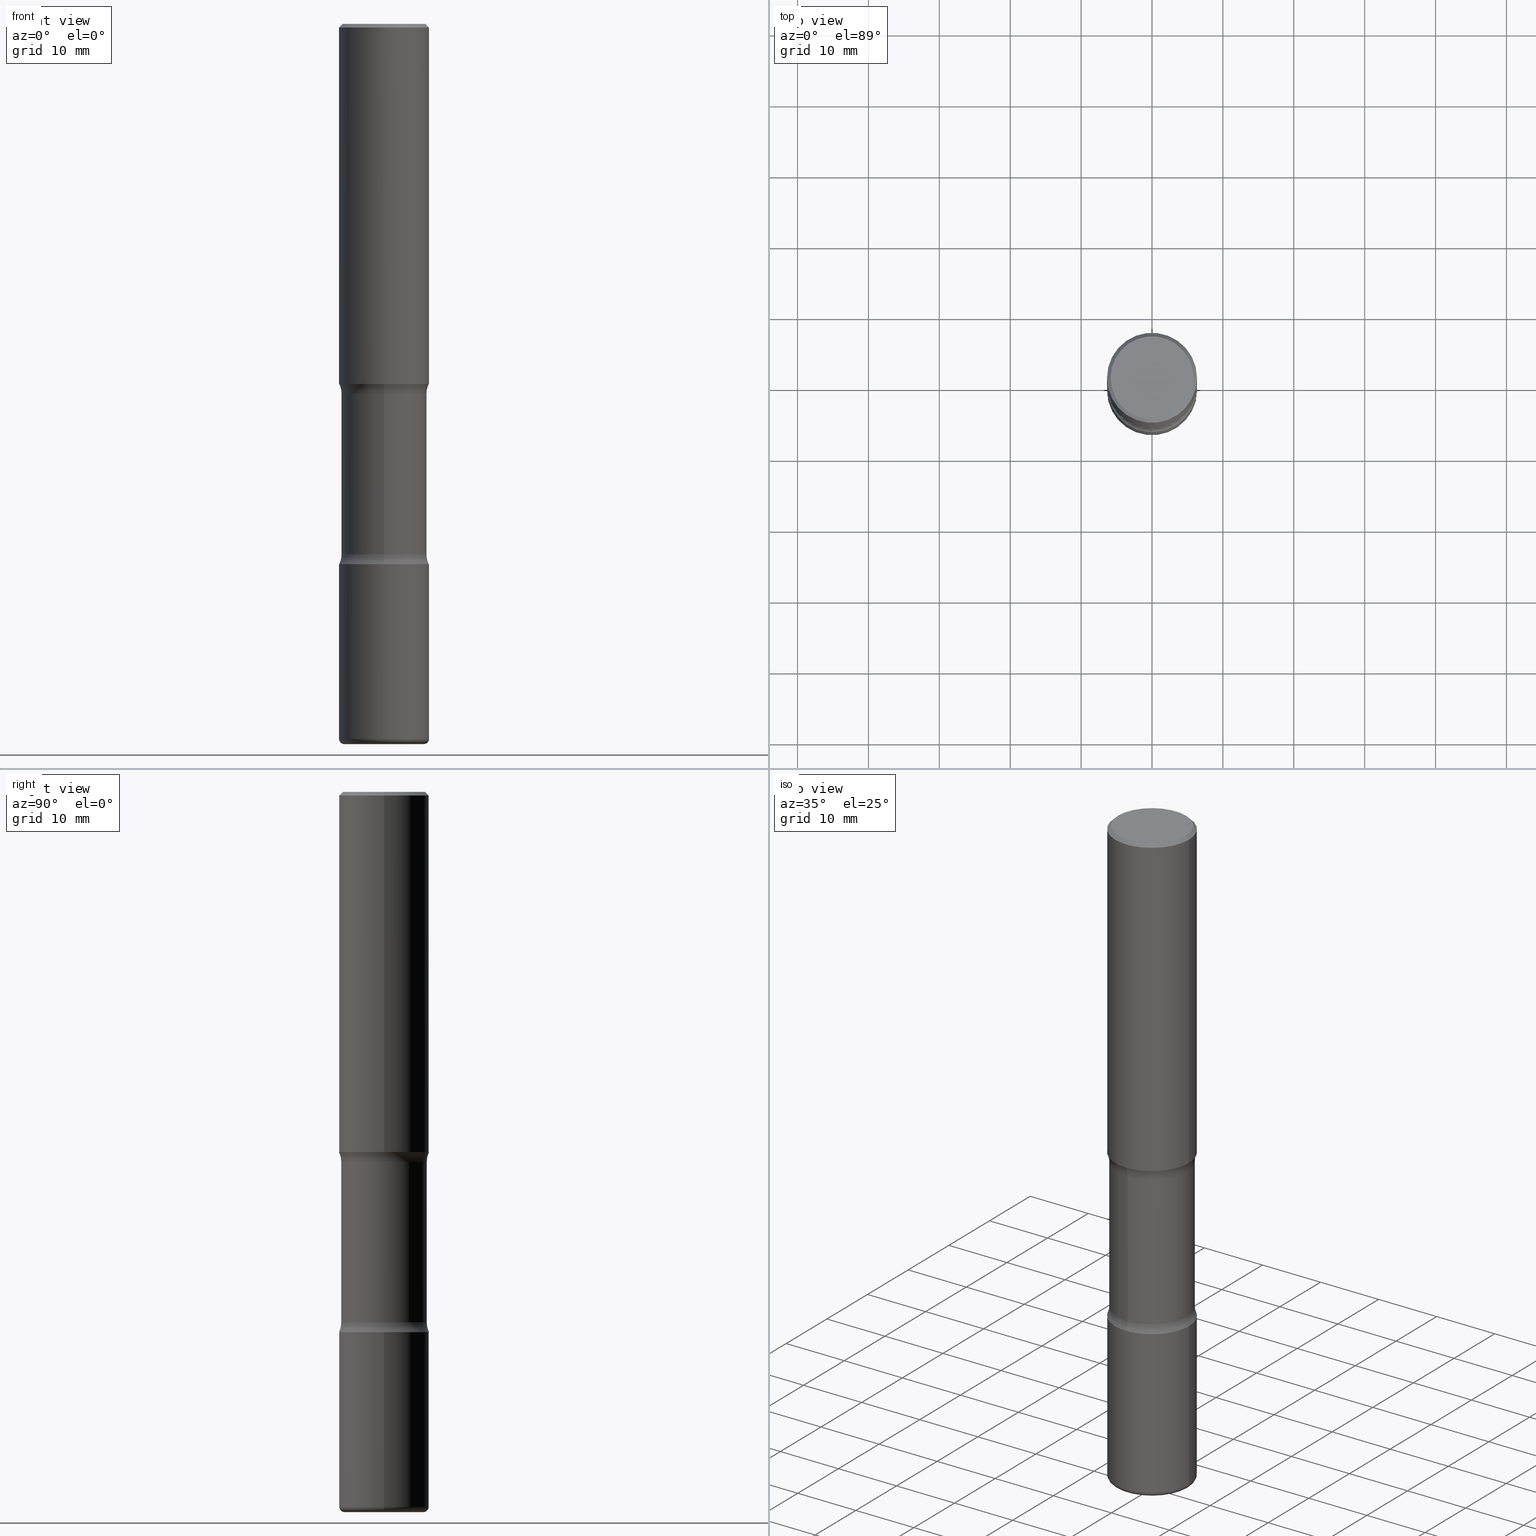
[diagram: canonical four-view strip — front | top / right | iso, engineering-drawing reading convention]
A machine part, canonical four-view strip (front | top / right | iso — engineering-drawing reading convention). The complete STEP part file that produces these views, byte-faithful:
ISO-10303-21;
HEADER;
FILE_DESCRIPTION (( 'STEP AP203' ),
    '1' );
FILE_NAME ('37879.STEP',
    '2024-03-02T01:00:51',
    ( '' ),
    ( '' ),
    'SwSTEP 2.0',
    'SolidWorks 2023',
    '' );
FILE_SCHEMA (( 'CONFIG_CONTROL_DESIGN' ));
ENDSEC;

DATA;
#1 = AXIS2_PLACEMENT_3D ( 'NONE', #535, #62, #238 ) ;
#2 = MANIFOLD_SOLID_BREP ( 'Body-Move/Copy2[1]', #109 ) ;
#3 = PRODUCT_RELATED_PRODUCT_CATEGORY ( 'detail', '', ( #386 ) ) ;
#4 = PRODUCT_DEFINITION_FORMATION_WITH_SPECIFIED_SOURCE ( 'ANY', '', #386, .NOT_KNOWN. ) ;
#5 = ORIENTED_EDGE ( 'NONE', *, *, #202, .T. ) ;
#6 = DIRECTION ( 'NONE',  ( 6.982962677686265922E-15, 1.000000000000000000, -3.369885892833230592E-15 ) ) ;
#7 = DIRECTION ( 'NONE',  ( 2.530378452311521502E-29, -3.369885892833230986E-15, -1.000000000000000000 ) ) ;
#8 = DIRECTION ( 'NONE',  ( 2.530378452311521502E-29, -3.369885892833230986E-15, -1.000000000000000000 ) ) ;
#9 = EDGE_LOOP ( 'NONE', ( #264, #334 ) ) ;
#10 = MANIFOLD_SOLID_BREP ( 'Body-Move/Copy2[2]', #168 ) ;
#11 = DIRECTION ( 'NONE',  ( 1.000000000000000000, -6.982962677686265922E-15, 0.000000000000000000 ) ) ;
#12 = SECURITY_CLASSIFICATION ( '', '', #315 ) ;
#13 = VERTEX_POINT ( 'NONE', #18 ) ;
#14 = DIRECTION ( 'NONE',  ( -2.445468806185136597E-29, 3.491481338843145583E-15, 1.000000000000000000 ) ) ;
#15 = EDGE_CURVE ( 'NONE', #90, #30, #239, .T. ) ;
#16 = EDGE_CURVE ( 'NONE', #522, #553, #38, .T. ) ;
#17 = FACE_OUTER_BOUND ( 'NONE', #393, .T. ) ;
#18 = CARTESIAN_POINT ( 'NONE',  ( -1.715124499442836348E-15, -0.2500000000000074385, -1.999999999999999112 ) ) ;
#19 = CARTESIAN_POINT ( 'NONE',  ( 9.866784870866931853E-29, -1.384432990936266734E-14, -4.000000000000000000 ) ) ;
#20 = PLANE ( 'NONE',  #560 ) ;
#21 = AXIS2_PLACEMENT_3D ( 'NONE', #118, #333, #206 ) ;
#22 = AXIS2_PLACEMENT_3D ( 'NONE', #371, #480, #6 ) ;
#23 = CYLINDRICAL_SURFACE ( 'NONE', #364, 0.2375000000000000999 ) ;
#24 = ADVANCED_FACE ( 'NONE', ( #482 ), #242, .F. ) ;
#25 = EDGE_CURVE ( 'NONE', #360, #13, #241, .T. ) ;
#26 = FACE_OUTER_BOUND ( 'NONE', #474, .T. ) ;
#27 = FACE_OUTER_BOUND ( 'NONE', #344, .T. ) ;
#28 = DIRECTION ( 'NONE',  ( 1.000000000000000000, -6.982962677686267499E-15, 0.000000000000000000 ) ) ;
#29 = CARTESIAN_POINT ( 'NONE',  ( 1.658453635950538436E-15, 0.2374999999999928557, -2.054486236794259568 ) ) ;
#30 = VERTEX_POINT ( 'NONE', #278 ) ;
#31 = CARTESIAN_POINT ( 'NONE',  ( 0.2499999999999999167, -1.784954126219745400E-15, -0.02000000000000006981 ) ) ;
#32 = CARTESIAN_POINT ( 'NONE',  ( 9.781875224740546387E-29, -1.396592535537258233E-14, -4.000000000000000000 ) ) ;
#33 = TOROIDAL_SURFACE ( 'NONE', #355, 0.3625000000000000999, 0.1250000000000000000 ) ;
#34 = DIMENSIONAL_EXPONENTS ( 1.000000000000000000, 0.000000000000000000, 0.000000000000000000, 0.000000000000000000, 0.000000000000000000, 0.000000000000000000, 0.000000000000000000 ) ;
#35 = DIRECTION ( 'NONE',  ( 2.530378452311521502E-29, -3.369885892833230986E-15, -1.000000000000000000 ) ) ;
#36 = CIRCLE ( 'NONE', #133, 0.2500000000000003886 ) ;
#37 = ORIENTED_EDGE ( 'NONE', *, *, #184, .F. ) ;
#38 = CIRCLE ( 'NONE', #542, 0.2375000000000000722 ) ;
#39 = CARTESIAN_POINT ( 'NONE',  ( 7.198535619023675570E-29, -1.029083161580289368E-14, -2.945513763205741320 ) ) ;
#40 = CC_DESIGN_SECURITY_CLASSIFICATION ( #12, ( #4 ) ) ;
#41 = CC_DESIGN_DATE_AND_TIME_ASSIGNMENT ( #94, #511, ( #12 ) ) ;
#42 = CARTESIAN_POINT ( 'NONE',  ( 4.943898765775623630E-29, -7.288170524422749615E-15, -2.054486236794258680 ) ) ;
#43 = EDGE_LOOP ( 'NONE', ( #484, #134, #5, #232 ) ) ;
#44 = EDGE_LOOP ( 'NONE', ( #104, #317, #88, #79 ) ) ;
#45 = PRODUCT_DEFINITION_SHAPE ( 'NONE', 'NONE',  #83 ) ;
#46 = COORDINATED_UNIVERSAL_TIME_OFFSET ( 5, 0, .BEHIND. ) ;
#47 = ORIENTED_EDGE ( 'NONE', *, *, #326, .F. ) ;
#48 = AXIS2_PLACEMENT_3D ( 'NONE', #53, #552, #316 ) ;
#49 = COORDINATED_UNIVERSAL_TIME_OFFSET ( 5, 0, .BEHIND. ) ;
#50 = CARTESIAN_POINT ( 'NONE',  ( 7.336406418555409790E-29, -1.047444401652943635E-14, -3.000000000000000444 ) ) ;
#51 = APPROVAL_DATE_TIME ( #145, #170 ) ;
#52 = CC_DESIGN_PERSON_AND_ORGANIZATION_ASSIGNMENT ( #308, #518, ( #12 ) ) ;
#53 = CARTESIAN_POINT ( 'NONE',  ( 0.000000000000000000, 0.000000000000000000, 0.000000000000000000 ) ) ;
#54 = EDGE_CURVE ( 'NONE', #557, #360, #311, .T. ) ;
#55 = AXIS2_PLACEMENT_3D ( 'NONE', #213, #460, #539 ) ;
#56 = VECTOR ( 'NONE', #376, 39.37007874015748143 ) ;
#57 = EDGE_LOOP ( 'NONE', ( #221, #397, #395, #369 ) ) ;
#58 = CARTESIAN_POINT ( 'NONE',  ( 0.000000000000000000, 0.000000000000000000, 0.000000000000000000 ) ) ;
#59 = DIRECTION ( 'NONE',  ( -2.445468806185136877E-29, 3.491481338843145188E-15, 1.000000000000000000 ) ) ;
#60 = ORIENTED_EDGE ( 'NONE', *, *, #269, .F. ) ;
#61 = CARTESIAN_POINT ( 'NONE',  ( 2.531323970661321775E-15, 0.3624999999999928280, -2.054486236794260012 ) ) ;
#62 = DIRECTION ( 'NONE',  ( 2.438088387897960049E-29, -3.491481338843145188E-15, -1.000000000000000000 ) ) ;
#63 = AXIS2_PLACEMENT_3D ( 'NONE', #58, #192, #283 ) ;
#64 = DIRECTION ( 'NONE',  ( 2.530378452311521502E-29, -3.369885892833230986E-15, -1.000000000000000000 ) ) ;
#65 = VECTOR ( 'NONE', #287, 39.37007874015748143 ) ;
#66 = CARTESIAN_POINT ( 'NONE',  ( -0.2499999999999999167, 1.675911042644703182E-15, -0.02000000000000006981 ) ) ;
#67 = LOCAL_TIME ( 20, 0, 51.00000000000000000, #471 ) ;
#68 = FACE_OUTER_BOUND ( 'NONE', #466, .T. ) ;
#69 = CARTESIAN_POINT ( 'NONE',  ( -2.486930524192108484E-15, -0.3625000000000104250, -2.945513763205740432 ) ) ;
#70 = CARTESIAN_POINT ( 'NONE',  ( 7.203162026108633562E-29, -1.028420633753849345E-14, -2.945513763205741320 ) ) ;
#71 = EDGE_CURVE ( 'NONE', #437, #126, #513, .T. ) ;
#72 = FACE_OUTER_BOUND ( 'NONE', #218, .T. ) ;
#73 = DIRECTION ( 'NONE',  ( -2.445468806185136597E-29, 3.491481338843145583E-15, 1.000000000000000000 ) ) ;
#74 = DIRECTION ( 'NONE',  ( 1.000000000000000000, -6.982962677686267499E-15, 0.000000000000000000 ) ) ;
#75 = AXIS2_PLACEMENT_3D ( 'NONE', #274, #439, #220 ) ;
#76 = DIRECTION ( 'NONE',  ( 2.445468806185136597E-29, -3.491481338843145583E-15, -1.000000000000000000 ) ) ;
#77 = DIRECTION ( 'NONE',  ( 6.982962677686265922E-15, 1.000000000000000000, -4.370956789862816416E-15 ) ) ;
#78 = DIRECTION ( 'NONE',  ( 1.000000000000000000, -6.860497997771530774E-15, 4.842287994361612002E-29 ) ) ;
#79 = ORIENTED_EDGE ( 'NONE', *, *, #495, .F. ) ;
#80 = DESIGN_CONTEXT ( 'detailed design', #117, 'design' ) ;
#81 = CARTESIAN_POINT ( 'NONE',  ( -0.2200000000000003897, -1.229798689653506716E-14, -3.970000000000000639 ) ) ;
#82 = ORIENTED_EDGE ( 'NONE', *, *, #113, .T. ) ;
#83 = PRODUCT_DEFINITION ( 'UNKNOWN', '', #4, #80 ) ;
#84 = CYLINDRICAL_SURFACE ( 'NONE', #100, 0.2500000000000000555 ) ;
#85 = TOROIDAL_SURFACE ( 'NONE', #21, 0.3625000000000000999, 0.1250000000000000278 ) ;
#86 =( LENGTH_UNIT ( ) NAMED_UNIT ( * ) SI_UNIT ( $, .METRE. ) );
#87 = AXIS2_PLACEMENT_3D ( 'NONE', #493, #35, #297 ) ;
#88 = ORIENTED_EDGE ( 'NONE', *, *, #16, .T. ) ;
#89 = PERSON_AND_ORGANIZATION ( #91, #507 ) ;
#90 = VERTEX_POINT ( 'NONE', #197 ) ;
#91 = PERSON ( 'UNSPECIFIED', 'UNSPECIFIED', 'UNSPECIFIED', ('UNSPECIFIED'), ('UNSPECIFIED'), ('UNSPECIFIED') ) ;
#92 = APPROVAL_DATE_TIME ( #359, #504 ) ;
#93 = VERTEX_POINT ( 'NONE', #441 ) ;
#94 = DATE_AND_TIME ( #136, #293 ) ;
#95 = DIRECTION ( 'NONE',  ( 1.000000000000000000, -6.982962677686266711E-15, 4.876176775795935793E-29 ) ) ;
#96 = AXIS2_PLACEMENT_3D ( 'NONE', #324, #279, #11 ) ;
#97 = CALENDAR_DATE ( 2024, 1, 3 ) ;
#98 = SHAPE_DEFINITION_REPRESENTATION ( #45, #164 ) ;
#99 = ORIENTED_EDGE ( 'NONE', *, *, #448, .T. ) ;
#100 = AXIS2_PLACEMENT_3D ( 'NONE', #454, #418, #258 ) ;
#101 = AXIS2_PLACEMENT_3D ( 'NONE', #294, #216, #130 ) ;
#102 = ORIENTED_EDGE ( 'NONE', *, *, #281, .T. ) ;
#103 = CARTESIAN_POINT ( 'NONE',  ( 7.336406418555409790E-29, -1.047444401652943635E-14, -3.000000000000000444 ) ) ;
#104 = ORIENTED_EDGE ( 'NONE', *, *, #464, .F. ) ;
#105 = ORIENTED_EDGE ( 'NONE', *, *, #505, .T. ) ;
#106 = DIRECTION ( 'NONE',  ( 1.000000000000000000, -6.982962677686265922E-15, 0.000000000000000000 ) ) ;
#107 = CC_DESIGN_PERSON_AND_ORGANIZATION_ASSIGNMENT ( #556, #187, ( #386 ) ) ;
#108 = DIRECTION ( 'NONE',  ( 6.860497997771532351E-15, 1.000000000000000000, 0.000000000000000000 ) ) ;
#109 = CLOSED_SHELL ( 'NONE', ( #135, #538, #177, #440, #245, #391 ) ) ;
#110 = CIRCLE ( 'NONE', #304, 0.2500000000000003886 ) ;
#111 = DIRECTION ( 'NONE',  ( -6.982962677686266711E-15, -1.000000000000000000, 0.000000000000000000 ) ) ;
#112 = CARTESIAN_POINT ( 'NONE',  ( 0.2499999999999999167, -1.784954126219745400E-15, -0.02000000000000006981 ) ) ;
#113 = EDGE_CURVE ( 'NONE', #126, #437, #217, .T. ) ;
#114 = FACE_OUTER_BOUND ( 'NONE', #405, .T. ) ;
#115 = EDGE_CURVE ( 'NONE', #366, #129, #421, .T. ) ;
#116 = DIRECTION ( 'NONE',  ( 1.000000000000000000, -6.860497997771530774E-15, 4.842287994361612002E-29 ) ) ;
#117 = APPLICATION_CONTEXT ( 'configuration controlled 3d designs of mechanical parts and assemblies' ) ;
#118 = CARTESIAN_POINT ( 'NONE',  ( 7.203162026108633562E-29, -1.028420633753849345E-14, -2.945513763205741320 ) ) ;
#119 = DIRECTION ( 'NONE',  ( 1.000000000000000000, -6.982962677686269077E-15, 4.883557194083113462E-29 ) ) ;
#120 = CYLINDRICAL_SURFACE ( 'NONE', #475, 0.2500000000000003331 ) ;
#121 = CIRCLE ( 'NONE', #87, 0.2500000000000002776 ) ;
#122 = APPROVAL_PERSON_ORGANIZATION ( #354, #325, #427 ) ;
#123 = CARTESIAN_POINT ( 'NONE',  ( -0.2499999999999999167, 1.675911042644703182E-15, -0.02000000000000006981 ) ) ;
#124 = ORIENTED_EDGE ( 'NONE', *, *, #505, .F. ) ;
#125 = DIRECTION ( 'NONE',  ( -6.982962677686266711E-15, -1.000000000000000000, 3.491481338843145583E-15 ) ) ;
#126 = VERTEX_POINT ( 'NONE', #447 ) ;
#127 = ADVANCED_FACE ( 'NONE', ( #237 ), #270, .F. ) ;
#128 = DIRECTION ( 'NONE',  ( -1.000000000000000000, 7.105427357601001859E-15, 0.000000000000000000 ) ) ;
#129 = VERTEX_POINT ( 'NONE', #157 ) ;
#130 = DIRECTION ( 'NONE',  ( -6.982962677686265133E-15, -1.000000000000000000, 0.000000000000000000 ) ) ;
#131 = EDGE_LOOP ( 'NONE', ( #301, #190, #517, #102 ) ) ;
#132 = DIRECTION ( 'NONE',  ( 6.982962677686265133E-15, 1.000000000000000000, -3.450755360418014766E-15 ) ) ;
#133 = AXIS2_PLACEMENT_3D ( 'NONE', #461, #305, #252 ) ;
#134 = ORIENTED_EDGE ( 'NONE', *, *, #269, .T. ) ;
#135 = ADVANCED_FACE ( 'NONE', ( #68 ), #408, .T. ) ;
#136 = CALENDAR_DATE ( 2024, 1, 3 ) ;
#137 = ORIENTED_EDGE ( 'NONE', *, *, #176, .T. ) ;
#138 = PERSON_AND_ORGANIZATION ( #91, #507 ) ;
#139 = CARTESIAN_POINT ( 'NONE',  ( 0.000000000000000000, 0.000000000000000000, 0.000000000000000000 ) ) ;
#140 = CALENDAR_DATE ( 2024, 1, 3 ) ;
#141 = AXIS2_PLACEMENT_3D ( 'NONE', #486, #520, #318 ) ;
#142 = CIRCLE ( 'NONE', #215, 0.1250000000000000278 ) ;
#143 = CIRCLE ( 'NONE', #357, 0.2499999999999999167 ) ;
#144 = LOCAL_TIME ( 20, 0, 51.00000000000000000, #46 ) ;
#145 = DATE_AND_TIME ( #140, #250 ) ;
#146 = CC_DESIGN_PERSON_AND_ORGANIZATION_ASSIGNMENT ( #89, #181, ( #83 ) ) ;
#147 = EDGE_LOOP ( 'NONE', ( #420, #212, #275, #385 ) ) ;
#148 = DIRECTION ( 'NONE',  ( 6.982962677686265922E-15, 1.000000000000000000, -3.369885892833230986E-15 ) ) ;
#149 = APPLICATION_CONTEXT ( 'configuration controlled 3d designs of mechanical parts and assemblies' ) ;
#150 = FACE_OUTER_BOUND ( 'NONE', #548, .T. ) ;
#151 = VECTOR ( 'NONE', #59, 39.37007874015748143 ) ;
#152 = DIRECTION ( 'NONE',  ( 1.000000000000000000, -6.982962677686270655E-15, 0.000000000000000000 ) ) ;
#153 = ADVANCED_FACE ( 'NONE', ( #310 ), #33, .F. ) ;
#154 = DIRECTION ( 'NONE',  ( 1.000000000000000000, -6.982962677686267499E-15, 0.000000000000000000 ) ) ;
#155 = CARTESIAN_POINT ( 'NONE',  ( 0.000000000000000000, 0.000000000000000000, 0.000000000000000000 ) ) ;
#156 = DIRECTION ( 'NONE',  ( -2.445468806185136597E-29, 3.491481338843145583E-15, 1.000000000000000000 ) ) ;
#157 = CARTESIAN_POINT ( 'NONE',  ( 0.2500000000000002776, -1.222018468595100619E-14, -3.000000000000000444 ) ) ;
#158 = EDGE_CURVE ( 'NONE', #272, #182, #185, .T. ) ;
#159 = EDGE_CURVE ( 'NONE', #172, #366, #411, .T. ) ;
#160 = AXIS2_PLACEMENT_3D ( 'NONE', #424, #384, #119 ) ;
#161 = CARTESIAN_POINT ( 'NONE',  ( -0.2500000000000000555, 1.776356839400250859E-15, -1.229733772563726866E-29 ) ) ;
#162 = CARTESIAN_POINT ( 'NONE',  ( -1.715124499442811104E-15, -0.2500000000000107692, -2.999999999999999556 ) ) ;
#163 =( NAMED_UNIT ( * ) SI_UNIT ( $, .STERADIAN. ) SOLID_ANGLE_UNIT ( ) );
#164 = ADVANCED_BREP_SHAPE_REPRESENTATION ( '37879', ( #2, #10, #378, #48 ), #372 ) ;
#165 = LINE ( 'NONE', #335, #204 ) ;
#166 = CARTESIAN_POINT ( 'NONE',  ( -1.629368274470640415E-15, -0.2375000000000139222, -3.999999999999999556 ) ) ;
#167 = DIRECTION ( 'NONE',  ( 2.530378452311521502E-29, -3.369885892833230986E-15, -1.000000000000000000 ) ) ;
#168 = CLOSED_SHELL ( 'NONE', ( #210, #309, #479, #433, #24, #302 ) ) ;
#169 = CIRCLE ( 'NONE', #224, 0.2375000000000000722 ) ;
#170 = APPROVAL ( #350, 'UNSPECIFIED' ) ;
#171 = DIRECTION ( 'NONE',  ( -2.530378452311521502E-29, 3.369885892833230592E-15, 1.000000000000000000 ) ) ;
#172 = VERTEX_POINT ( 'NONE', #342 ) ;
#173 = DIRECTION ( 'NONE',  ( -2.445468806185136597E-29, 3.491481338843145583E-15, 1.000000000000000000 ) ) ;
#174 = CARTESIAN_POINT ( 'NONE',  ( 9.866784870866931853E-29, -1.384432990936266734E-14, -4.000000000000000000 ) ) ;
#175 = ORIENTED_EDGE ( 'NONE', *, *, #233, .T. ) ;
#176 = EDGE_CURVE ( 'NONE', #30, #172, #380, .T. ) ;
#177 = ADVANCED_FACE ( 'NONE', ( #26 ), #20, .T. ) ;
#178 = CIRCLE ( 'NONE', #488, 0.02999999999999967970 ) ;
#179 = ORIENTED_EDGE ( 'NONE', *, *, #288, .T. ) ;
#180 = LOCAL_TIME ( 20, 0, 51.00000000000000000, #49 ) ;
#181 = PERSON_AND_ORGANIZATION_ROLE ( 'creator' ) ;
#182 = VERTEX_POINT ( 'NONE', #162 ) ;
#183 = COORDINATED_UNIVERSAL_TIME_OFFSET ( 5, 0, .BEHIND. ) ;
#184 = EDGE_CURVE ( 'NONE', #93, #459, #450, .T. ) ;
#185 = CIRCLE ( 'NONE', #515, 0.2500000000000002776 ) ;
#186 = CONICAL_SURFACE ( 'NONE', #381, 0.2499999999999999167, 0.7853981633974472798 ) ;
#187 = PERSON_AND_ORGANIZATION_ROLE ( 'design_owner' ) ;
#188 = CARTESIAN_POINT ( 'NONE',  ( 4.976491023364875751E-29, -7.241496556518841686E-15, -2.054486236794258680 ) ) ;
#189 = LINE ( 'NONE', #166, #56 ) ;
#190 = ORIENTED_EDGE ( 'NONE', *, *, #158, .F. ) ;
#191 = ADVANCED_FACE ( 'NONE', ( #492 ), #85, .F. ) ;
#192 = DIRECTION ( 'NONE',  ( -2.445468806185136597E-29, 3.491481338843145583E-15, 1.000000000000000000 ) ) ;
#193 = ADVANCED_FACE ( 'NONE', ( #374 ), #282, .F. ) ;
#194 = DIRECTION ( 'NONE',  ( 6.982962677686265133E-15, 1.000000000000000000, -2.300503573612010239E-15 ) ) ;
#195 = EDGE_LOOP ( 'NONE', ( #124, #551, #340, #462 ) ) ;
#196 = CARTESIAN_POINT ( 'NONE',  ( 1.745740669421617165E-15, 0.2499999999999933109, -2.000000000000000888 ) ) ;
#197 = CARTESIAN_POINT ( 'NONE',  ( 0.2200000000000003897, -1.550217714446356385E-14, -4.000000000000000000 ) ) ;
#198 = DIRECTION ( 'NONE',  ( -2.445468806185136597E-29, 3.491481338843145583E-15, 1.000000000000000000 ) ) ;
#199 = EDGE_CURVE ( 'NONE', #219, #172, #231, .T. ) ;
#200 = ORIENTED_EDGE ( 'NONE', *, *, #290, .T. ) ;
#201 = PLANE ( 'NONE',  #22 ) ;
#202 = EDGE_CURVE ( 'NONE', #358, #459, #143, .T. ) ;
#203 = EDGE_CURVE ( 'NONE', #236, #557, #533, .T. ) ;
#204 = VECTOR ( 'NONE', #494, 39.37007874015748143 ) ;
#205 = AXIS2_PLACEMENT_3D ( 'NONE', #496, #506, #550 ) ;
#206 = DIRECTION ( 'NONE',  ( 6.982962677686265922E-15, 1.000000000000000000, -3.369885892833230986E-15 ) ) ;
#207 = DIRECTION ( 'NONE',  ( -6.982962677686265922E-15, -1.000000000000000000, 3.369885892833230592E-15 ) ) ;
#208 = DIRECTION ( 'NONE',  ( -1.000000000000000000, 6.982962677686265922E-15, -4.876176775795935793E-29 ) ) ;
#209 = CARTESIAN_POINT ( 'NONE',  ( -2.486930524192130572E-15, -0.3625000000000073164, -2.054486236794257792 ) ) ;
#210 = ADVANCED_FACE ( 'NONE', ( #257 ), #84, .T. ) ;
#211 = CARTESIAN_POINT ( 'NONE',  ( 0.2500000000000002220, -1.560692158462885722E-14, -3.970000000000000639 ) ) ;
#212 = ORIENTED_EDGE ( 'NONE', *, *, #184, .T. ) ;
#213 = CARTESIAN_POINT ( 'NONE',  ( 4.943898765775623630E-29, -7.288170524422749615E-15, -2.054486236794258680 ) ) ;
#214 = AXIS2_PLACEMENT_3D ( 'NONE', #155, #14, #524 ) ;
#215 = AXIS2_PLACEMENT_3D ( 'NONE', #69, #116, #108 ) ;
#216 = DIRECTION ( 'NONE',  ( -1.000000000000000000, 6.982962677686265922E-15, -4.883557194083112340E-29 ) ) ;
#217 = CIRCLE ( 'NONE', #63, 0.2299999999999998990 ) ;
#218 = EDGE_LOOP ( 'NONE', ( #37, #388, #353, #47 ) ) ;
#219 = VERTEX_POINT ( 'NONE', #211 ) ;
#220 = DIRECTION ( 'NONE',  ( 1.000000000000000000, -6.982962677686269077E-15, 4.883557194083113462E-29 ) ) ;
#221 = ORIENTED_EDGE ( 'NONE', *, *, #448, .F. ) ;
#222 = PERSON_AND_ORGANIZATION ( #91, #507 ) ;
#223 = ORIENTED_EDGE ( 'NONE', *, *, #456, .F. ) ;
#224 = AXIS2_PLACEMENT_3D ( 'NONE', #39, #370, #532 ) ;
#225 = DATE_AND_TIME ( #509, #144 ) ;
#226 = ORIENTED_EDGE ( 'NONE', *, *, #512, .F. ) ;
#227 = DATE_TIME_ROLE ( 'creation_date' ) ;
#228 = EDGE_LOOP ( 'NONE', ( #82, #263 ) ) ;
#229 = CC_DESIGN_PERSON_AND_ORGANIZATION_ASSIGNMENT ( #558, #266, ( #4 ) ) ;
#230 = APPROVAL_ROLE ( '' ) ;
#231 = CIRCLE ( 'NONE', #348, 0.2500000000000003886 ) ;
#232 = ORIENTED_EDGE ( 'NONE', *, *, #373, .F. ) ;
#233 = EDGE_CURVE ( 'NONE', #219, #129, #165, .T. ) ;
#234 = EDGE_LOOP ( 'NONE', ( #248, #105, #425, #327 ) ) ;
#235 = FACE_OUTER_BOUND ( 'NONE', #295, .T. ) ;
#236 = VERTEX_POINT ( 'NONE', #423 ) ;
#237 = FACE_OUTER_BOUND ( 'NONE', #234, .T. ) ;
#238 = DIRECTION ( 'NONE',  ( -1.000000000000000000, 6.982962677686265922E-15, -4.876176775795935793E-29 ) ) ;
#239 = CIRCLE ( 'NONE', #490, 0.2200000000000003897 ) ;
#240 = AXIS2_PLACEMENT_3D ( 'NONE', #32, #415, #74 ) ;
#241 = CIRCLE ( 'NONE', #383, 0.2500000000000003886 ) ;
#242 = PLANE ( 'NONE',  #141 ) ;
#243 = CARTESIAN_POINT ( 'NONE',  ( 0.2500000000000000555, -1.745740669421567269E-15, 1.219044193948984228E-29 ) ) ;
#244 = VERTEX_POINT ( 'NONE', #247 ) ;
#245 = ADVANCED_FACE ( 'NONE', ( #114 ), #120, .T. ) ;
#246 = CARTESIAN_POINT ( 'NONE',  ( 4.890937612370289799E-31, -6.982962677686315028E-17, -0.02000000000000006981 ) ) ;
#247 = CARTESIAN_POINT ( 'NONE',  ( 0.2500000000000001665, -8.728703347107858632E-15, -2.000000000000000000 ) ) ;
#248 = ORIENTED_EDGE ( 'NONE', *, *, #203, .F. ) ;
#249 = FACE_OUTER_BOUND ( 'NONE', #307, .T. ) ;
#250 = LOCAL_TIME ( 20, 0, 51.00000000000000000, #432 ) ;
#251 = DIRECTION ( 'NONE',  ( 2.438088387897960049E-29, -3.491481338843145188E-15, -1.000000000000000000 ) ) ;
#252 = DIRECTION ( 'NONE',  ( 6.982962677686265133E-15, 1.000000000000000000, -3.278217592397110735E-15 ) ) ;
#253 = CC_DESIGN_APPROVAL ( #170, ( #83 ) ) ;
#254 = CARTESIAN_POINT ( 'NONE',  ( 0.000000000000000000, 0.000000000000000000, 0.000000000000000000 ) ) ;
#255 = DIRECTION ( 'NONE',  ( 2.530378452311521502E-29, -3.369885892833230986E-15, -1.000000000000000000 ) ) ;
#256 = ORIENTED_EDGE ( 'NONE', *, *, #25, .F. ) ;
#257 = FACE_OUTER_BOUND ( 'NONE', #147, .T. ) ;
#258 = DIRECTION ( 'NONE',  ( 1.000000000000000000, -6.982962677686267499E-15, 4.876176775795935793E-29 ) ) ;
#259 = VECTOR ( 'NONE', #330, 39.37007874015748143 ) ;
#260 = AXIS2_PLACEMENT_3D ( 'NONE', #19, #8, #194 ) ;
#261 = ORIENTED_EDGE ( 'NONE', *, *, #281, .F. ) ;
#262 = PERSON_AND_ORGANIZATION_ROLE ( 'design_supplier' ) ;
#263 = ORIENTED_EDGE ( 'NONE', *, *, #71, .T. ) ;
#264 = ORIENTED_EDGE ( 'NONE', *, *, #158, .T. ) ;
#265 = CIRCLE ( 'NONE', #205, 0.2500000000000002776 ) ;
#266 = PERSON_AND_ORGANIZATION_ROLE ( 'creator' ) ;
#267 = EDGE_CURVE ( 'NONE', #90, #219, #178, .T. ) ;
#268 = ORIENTED_EDGE ( 'NONE', *, *, #326, .T. ) ;
#269 = EDGE_CURVE ( 'NONE', #437, #358, #457, .T. ) ;
#270 = TOROIDAL_SURFACE ( 'NONE', #444, 0.3625000000000000999, 0.1250000000000000000 ) ;
#271 = APPROVAL_PERSON_ORGANIZATION ( #516, #170, #508 ) ;
#272 = VERTEX_POINT ( 'NONE', #546 ) ;
#273 = DIRECTION ( 'NONE',  ( 1.000000000000000000, -6.982962677686267499E-15, 0.000000000000000000 ) ) ;
#274 = CARTESIAN_POINT ( 'NONE',  ( 9.708511160554993993E-29, -1.386118091520729054E-14, -3.970000000000000639 ) ) ;
#275 = ORIENTED_EDGE ( 'NONE', *, *, #202, .F. ) ;
#276 = CARTESIAN_POINT ( 'NONE',  ( 4.806027966243888288E-29, -7.104558123696206156E-15, -2.000000000000000000 ) ) ;
#277 = FACE_OUTER_BOUND ( 'NONE', #57, .T. ) ;
#278 = CARTESIAN_POINT ( 'NONE',  ( -0.2200000000000003897, -1.224377770625369951E-14, -4.000000000000000000 ) ) ;
#279 = DIRECTION ( 'NONE',  ( -2.445468806185136597E-29, 3.491481338843145583E-15, 1.000000000000000000 ) ) ;
#280 = CIRCLE ( 'NONE', #429, 0.2375000000000001277 ) ;
#281 = EDGE_CURVE ( 'NONE', #553, #522, #169, .T. ) ;
#282 = TOROIDAL_SURFACE ( 'NONE', #463, 0.3625000000000000999, 0.1250000000000000278 ) ;
#283 = DIRECTION ( 'NONE',  ( 1.000000000000000000, -6.982962677686267499E-15, 4.876176775795936353E-29 ) ) ;
#284 = CARTESIAN_POINT ( 'NONE',  ( 9.708511160554993993E-29, -1.386118091520729054E-14, -3.970000000000000639 ) ) ;
#285 = CARTESIAN_POINT ( 'NONE',  ( 9.781875224740546387E-29, -1.396592535537258233E-14, -4.000000000000000000 ) ) ;
#286 = DIRECTION ( 'NONE',  ( -0.7071067811865467956, 2.468850131082249172E-15, -0.7071067811865482389 ) ) ;
#287 = DIRECTION ( 'NONE',  ( -2.445468806185136877E-29, 3.491481338843145188E-15, 1.000000000000000000 ) ) ;
#288 = EDGE_CURVE ( 'NONE', #30, #90, #523, .T. ) ;
#289 = DIRECTION ( 'NONE',  ( 6.860497997771529985E-15, 1.000000000000000000, 0.000000000000000000 ) ) ;
#290 = EDGE_CURVE ( 'NONE', #172, #219, #110, .T. ) ;
#291 = TOROIDAL_SURFACE ( 'NONE', #75, 0.2200000000000003897, 0.02999999999999969705 ) ;
#292 = DIRECTION ( 'NONE',  ( 2.530378452311521502E-29, -3.369885892833230986E-15, -1.000000000000000000 ) ) ;
#293 = LOCAL_TIME ( 20, 0, 51.00000000000000000, #183 ) ;
#294 = CARTESIAN_POINT ( 'NONE',  ( 2.531323970661343863E-15, 0.3624999999999897748, -2.945513763205742652 ) ) ;
#295 = EDGE_LOOP ( 'NONE', ( #473, #387 ) ) ;
#296 = DIRECTION ( 'NONE',  ( 1.000000000000000000, -6.982962677686277755E-15, 0.000000000000000000 ) ) ;
#297 = DIRECTION ( 'NONE',  ( 6.982962677686265922E-15, 1.000000000000000000, -4.370956789862816416E-15 ) ) ;
#298 = ORIENTED_EDGE ( 'NONE', *, *, #267, .T. ) ;
#299 = CARTESIAN_POINT ( 'NONE',  ( 9.708511160554993993E-29, -1.386118091520729054E-14, -3.970000000000000639 ) ) ;
#300 = DIRECTION ( 'NONE',  ( 6.982962677686265133E-15, 1.000000000000000000, -2.300503573612010239E-15 ) ) ;
#301 = ORIENTED_EDGE ( 'NONE', *, *, #336, .F. ) ;
#302 = ADVANCED_FACE ( 'NONE', ( #72 ), #485, .T. ) ;
#303 = AXIS2_PLACEMENT_3D ( 'NONE', #529, #363, #152 ) ;
#304 = AXIS2_PLACEMENT_3D ( 'NONE', #284, #525, #154 ) ;
#305 = DIRECTION ( 'NONE',  ( 2.530378452311521502E-29, -3.369885892833230986E-15, -1.000000000000000000 ) ) ;
#306 = ORIENTED_EDGE ( 'NONE', *, *, #159, .T. ) ;
#307 = EDGE_LOOP ( 'NONE', ( #362, #137, #451, #416 ) ) ;
#308 = PERSON_AND_ORGANIZATION ( #91, #507 ) ;
#309 = ADVANCED_FACE ( 'NONE', ( #322 ), #470, .T. ) ;
#310 = FACE_OUTER_BOUND ( 'NONE', #195, .T. ) ;
#311 = CIRCLE ( 'NONE', #436, 0.1250000000000000000 ) ;
#312 = AXIS2_PLACEMENT_3D ( 'NONE', #103, #409, #402 ) ;
#313 = CALENDAR_DATE ( 2024, 1, 3 ) ;
#314 = AXIS2_PLACEMENT_3D ( 'NONE', #139, #510, #95 ) ;
#315 = SECURITY_CLASSIFICATION_LEVEL ( 'unclassified' ) ;
#316 = DIRECTION ( 'NONE',  ( 1.000000000000000000, 0.000000000000000000, 0.000000000000000000 ) ) ;
#317 = ORIENTED_EDGE ( 'NONE', *, *, #336, .T. ) ;
#318 = DIRECTION ( 'NONE',  ( 1.000000000000000000, -6.982962677686265922E-15, 4.876176775795935793E-29 ) ) ;
#319 = CIRCLE ( 'NONE', #349, 0.2499999999999999167 ) ;
#320 = DIRECTION ( 'NONE',  ( 1.000000000000000000, -6.982962677686267499E-15, 0.000000000000000000 ) ) ;
#321 = DIRECTION ( 'NONE',  ( 6.982962677686265133E-15, 1.000000000000000000, -2.300503573612010239E-15 ) ) ;
#322 = FACE_OUTER_BOUND ( 'NONE', #43, .T. ) ;
#323 = ORIENTED_EDGE ( 'NONE', *, *, #400, .F. ) ;
#324 = CARTESIAN_POINT ( 'NONE',  ( 4.890937612370273194E-29, -6.982962677686291165E-15, -2.000000000000000000 ) ) ;
#325 = APPROVAL ( #392, 'UNSPECIFIED' ) ;
#326 = EDGE_CURVE ( 'NONE', #459, #358, #319, .T. ) ;
#327 = ORIENTED_EDGE ( 'NONE', *, *, #54, .F. ) ;
#328 = DIRECTION ( 'NONE',  ( -2.445468806185136597E-29, 3.491481338843145583E-15, 1.000000000000000000 ) ) ;
#329 = CIRCLE ( 'NONE', #453, 0.2500000000000001665 ) ;
#330 = DIRECTION ( 'NONE',  ( -2.445468806185136877E-29, 3.491481338843145188E-15, 1.000000000000000000 ) ) ;
#331 = CC_DESIGN_APPROVAL ( #325, ( #4 ) ) ;
#332 = LINE ( 'NONE', #489, #534 ) ;
#333 = DIRECTION ( 'NONE',  ( 2.530378452311521502E-29, -3.369885892833230986E-15, -1.000000000000000000 ) ) ;
#334 = ORIENTED_EDGE ( 'NONE', *, *, #464, .T. ) ;
#335 = CARTESIAN_POINT ( 'NONE',  ( 0.2500000000000003331, -1.745740669421569044E-15, 1.219044193948985630E-29 ) ) ;
#336 = EDGE_CURVE ( 'NONE', #182, #522, #142, .T. ) ;
#337 = LENGTH_MEASURE_WITH_UNIT ( LENGTH_MEASURE( 0.02539999999999999897 ), #86 );
#338 = AXIS2_PLACEMENT_3D ( 'NONE', #528, #156, #404 ) ;
#339 = DIRECTION ( 'NONE',  ( 1.000000000000000000, -6.982962677686266711E-15, 4.876176775795935793E-29 ) ) ;
#340 = ORIENTED_EDGE ( 'NONE', *, *, #54, .T. ) ;
#341 = ORIENTED_EDGE ( 'NONE', *, *, #115, .F. ) ;
#342 = CARTESIAN_POINT ( 'NONE',  ( -0.2500000000000002220, -1.208482407580703850E-14, -3.970000000000000639 ) ) ;
#343 = APPLICATION_PROTOCOL_DEFINITION ( 'international standard', 'config_control_design', 1994, #149 ) ;
#344 = EDGE_LOOP ( 'NONE', ( #60, #469, #559, #268 ) ) ;
#345 = EDGE_CURVE ( 'NONE', #557, #553, #332, .T. ) ;
#346 = DIRECTION ( 'NONE',  ( 2.530378452311521502E-29, -3.369885892833230986E-15, -1.000000000000000000 ) ) ;
#347 = ORIENTED_EDGE ( 'NONE', *, *, #345, .F. ) ;
#348 = AXIS2_PLACEMENT_3D ( 'NONE', #299, #73, #28 ) ;
#349 = AXIS2_PLACEMENT_3D ( 'NONE', #246, #328, #320 ) ;
#350 = APPROVAL_STATUS ( 'not_yet_approved' ) ;
#351 = EDGE_CURVE ( 'NONE', #244, #93, #422, .T. ) ;
#352 = APPLICATION_PROTOCOL_DEFINITION ( 'international standard', 'config_control_design', 1994, #117 ) ;
#353 = ORIENTED_EDGE ( 'NONE', *, *, #389, .T. ) ;
#354 = PERSON_AND_ORGANIZATION ( #91, #507 ) ;
#355 = AXIS2_PLACEMENT_3D ( 'NONE', #188, #476, #375 ) ;
#356 = TOROIDAL_SURFACE ( 'NONE', #160, 0.2200000000000003897, 0.02999999999999969705 ) ;
#357 = AXIS2_PLACEMENT_3D ( 'NONE', #377, #173, #413 ) ;
#358 = VERTEX_POINT ( 'NONE', #112 ) ;
#359 = DATE_AND_TIME ( #97, #67 ) ;
#360 = VERTEX_POINT ( 'NONE', #196 ) ;
#361 = PLANE ( 'NONE',  #312 ) ;
#362 = ORIENTED_EDGE ( 'NONE', *, *, #15, .T. ) ;
#363 = DIRECTION ( 'NONE',  ( -2.445468806185136597E-29, 3.491481338843145583E-15, 1.000000000000000000 ) ) ;
#364 = AXIS2_PLACEMENT_3D ( 'NONE', #174, #255, #300 ) ;
#365 = PLANE ( 'NONE',  #1 ) ;
#366 = VERTEX_POINT ( 'NONE', #446 ) ;
#367 = ADVANCED_FACE ( 'NONE', ( #17 ), #201, .F. ) ;
#368 = LINE ( 'NONE', #66, #497 ) ;
#369 = ORIENTED_EDGE ( 'NONE', *, *, #16, .F. ) ;
#370 = DIRECTION ( 'NONE',  ( 2.530378452311521502E-29, -3.369885892833230986E-15, -1.000000000000000000 ) ) ;
#371 = CARTESIAN_POINT ( 'NONE',  ( 4.890937612370273194E-29, -6.982962677686291165E-15, -2.000000000000000000 ) ) ;
#372 =( GEOMETRIC_REPRESENTATION_CONTEXT ( 3 ) GLOBAL_UNCERTAINTY_ASSIGNED_CONTEXT ( ( #498 ) ) GLOBAL_UNIT_ASSIGNED_CONTEXT ( ( #458, #537, #163 ) ) REPRESENTATION_CONTEXT ( 'NONE', 'WORKASPACE' ) );
#373 = EDGE_CURVE ( 'NONE', #126, #459, #368, .T. ) ;
#374 = FACE_OUTER_BOUND ( 'NONE', #131, .T. ) ;
#375 = DIRECTION ( 'NONE',  ( 6.982962677686265922E-15, 1.000000000000000000, -3.369885892833230986E-15 ) ) ;
#376 = DIRECTION ( 'NONE',  ( 2.530378452311521502E-29, -3.369885892833230592E-15, -1.000000000000000000 ) ) ;
#377 = CARTESIAN_POINT ( 'NONE',  ( 4.890937612370289799E-31, -6.982962677686315028E-17, -0.02000000000000006981 ) ) ;
#378 = MANIFOLD_SOLID_BREP ( 'Body-Move/Copy2[4]', #478 ) ;
#379 = ORIENTED_EDGE ( 'NONE', *, *, #176, .F. ) ;
#380 = CIRCLE ( 'NONE', #487, 0.02999999999999967970 ) ;
#381 = AXIS2_PLACEMENT_3D ( 'NONE', #465, #76, #455 ) ;
#382 = DIRECTION ( 'NONE',  ( 0.7071067811865467956, -7.319954787623254468E-15, -0.7071067811865482389 ) ) ;
#383 = AXIS2_PLACEMENT_3D ( 'NONE', #276, #431, #438 ) ;
#384 = DIRECTION ( 'NONE',  ( -2.445468806185136597E-29, 3.491481338843145583E-15, 1.000000000000000000 ) ) ;
#385 = ORIENTED_EDGE ( 'NONE', *, *, #389, .F. ) ;
#386 = PRODUCT ( '37879', '37879', '', ( #434 ) ) ;
#387 = ORIENTED_EDGE ( 'NONE', *, *, #115, .T. ) ;
#388 = ORIENTED_EDGE ( 'NONE', *, *, #400, .T. ) ;
#389 = EDGE_CURVE ( 'NONE', #244, #358, #491, .T. ) ;
#390 = AXIS2_PLACEMENT_3D ( 'NONE', #412, #171, #207 ) ;
#391 = ADVANCED_FACE ( 'NONE', ( #235 ), #361, .F. ) ;
#392 = APPROVAL_STATUS ( 'not_yet_approved' ) ;
#393 = EDGE_LOOP ( 'NONE', ( #256, #226 ) ) ;
#394 = APPROVAL_DATE_TIME ( #430, #325 ) ;
#395 = ORIENTED_EDGE ( 'NONE', *, *, #345, .T. ) ;
#396 = AXIS2_PLACEMENT_3D ( 'NONE', #209, #78, #289 ) ;
#397 = ORIENTED_EDGE ( 'NONE', *, *, #203, .T. ) ;
#398 = ORIENTED_EDGE ( 'NONE', *, *, #159, .F. ) ;
#399 = DIRECTION ( 'NONE',  ( 2.530378452311521502E-29, -3.369885892833230592E-15, -1.000000000000000000 ) ) ;
#400 = EDGE_CURVE ( 'NONE', #93, #244, #329, .T. ) ;
#401 = DIRECTION ( 'NONE',  ( -1.000000000000000000, 6.982962677686265922E-15, -4.883557194083112340E-29 ) ) ;
#402 = DIRECTION ( 'NONE',  ( -1.000000000000000000, 6.982962677686265922E-15, -4.876176775795935793E-29 ) ) ;
#403 = CARTESIAN_POINT ( 'NONE',  ( 9.781875224740546387E-29, -1.396592535537258233E-14, -4.000000000000000000 ) ) ;
#404 = DIRECTION ( 'NONE',  ( 1.000000000000000000, -6.982962677686267499E-15, 4.876176775795935793E-29 ) ) ;
#405 = EDGE_LOOP ( 'NONE', ( #398, #200, #175, #341 ) ) ;
#406 = DIRECTION ( 'NONE',  ( -2.445468806185136597E-29, 3.491481338843145583E-15, 1.000000000000000000 ) ) ;
#407 = DIRECTION ( 'NONE',  ( -1.000000000000000000, 6.982962677686267499E-15, 0.000000000000000000 ) ) ;
#408 = CYLINDRICAL_SURFACE ( 'NONE', #314, 0.2500000000000003331 ) ;
#409 = DIRECTION ( 'NONE',  ( 2.438088387897960049E-29, -3.491481338843145188E-15, -1.000000000000000000 ) ) ;
#410 = ADVANCED_FACE ( 'NONE', ( #277 ), #442, .T. ) ;
#411 = LINE ( 'NONE', #536, #65 ) ;
#412 = CARTESIAN_POINT ( 'NONE',  ( 7.336406418555409790E-29, -1.047444401652943635E-14, -3.000000000000000444 ) ) ;
#413 = DIRECTION ( 'NONE',  ( 1.000000000000000000, -6.982962677686267499E-15, 0.000000000000000000 ) ) ;
#414 = DIRECTION ( 'NONE',  ( 6.982962677686265922E-15, 1.000000000000000000, -3.369885892833230986E-15 ) ) ;
#415 = DIRECTION ( 'NONE',  ( -2.445468806185136597E-29, 3.491481338843145583E-15, 1.000000000000000000 ) ) ;
#416 = ORIENTED_EDGE ( 'NONE', *, *, #267, .F. ) ;
#417 = CC_DESIGN_DATE_AND_TIME_ASSIGNMENT ( #225, #227, ( #83 ) ) ;
#418 = DIRECTION ( 'NONE',  ( -2.445468806185136597E-29, 3.491481338843145583E-15, 1.000000000000000000 ) ) ;
#419 = PLANE ( 'NONE',  #390 ) ;
#420 = ORIENTED_EDGE ( 'NONE', *, *, #351, .T. ) ;
#421 = CIRCLE ( 'NONE', #303, 0.2500000000000002776 ) ;
#422 = CIRCLE ( 'NONE', #96, 0.2500000000000001665 ) ;
#423 = CARTESIAN_POINT ( 'NONE',  ( -1.672246386956763723E-15, -0.2375000000000074274, -2.054486236794258236 ) ) ;
#424 = CARTESIAN_POINT ( 'NONE',  ( 9.708511160554993993E-29, -1.386118091520729054E-14, -3.970000000000000639 ) ) ;
#425 = ORIENTED_EDGE ( 'NONE', *, *, #512, .T. ) ;
#426 = ORIENTED_EDGE ( 'NONE', *, *, #288, .F. ) ;
#427 = APPROVAL_ROLE ( '' ) ;
#428 = EDGE_LOOP ( 'NONE', ( #467, #323 ) ) ;
#429 = AXIS2_PLACEMENT_3D ( 'NONE', #42, #346, #132 ) ;
#430 = DATE_AND_TIME ( #313, #180 ) ;
#431 = DIRECTION ( 'NONE',  ( 2.530378452311521502E-29, -3.369885892833230986E-15, -1.000000000000000000 ) ) ;
#432 = COORDINATED_UNIVERSAL_TIME_OFFSET ( 5, 0, .BEHIND. ) ;
#433 = ADVANCED_FACE ( 'NONE', ( #452 ), #365, .F. ) ;
#434 = MECHANICAL_CONTEXT ( 'NONE', #149, 'mechanical' ) ;
#435 = ORIENTED_EDGE ( 'NONE', *, *, #519, .T. ) ;
#436 = AXIS2_PLACEMENT_3D ( 'NONE', #61, #401, #111 ) ;
#437 = VERTEX_POINT ( 'NONE', #521 ) ;
#438 = DIRECTION ( 'NONE',  ( 6.982962677686265133E-15, 1.000000000000000000, -3.278217592397110735E-15 ) ) ;
#439 = DIRECTION ( 'NONE',  ( -2.445468806185136597E-29, 3.491481338843145583E-15, 1.000000000000000000 ) ) ;
#440 = ADVANCED_FACE ( 'NONE', ( #150 ), #291, .T. ) ;
#441 = CARTESIAN_POINT ( 'NONE',  ( -0.2500000000000001665, -1.750039312831323809E-15, -2.000000000000000000 ) ) ;
#442 = CYLINDRICAL_SURFACE ( 'NONE', #260, 0.2375000000000000999 ) ;
#443 = CARTESIAN_POINT ( 'NONE',  ( 4.976491023364875751E-29, -7.241496556518841686E-15, -2.054486236794258680 ) ) ;
#444 = AXIS2_PLACEMENT_3D ( 'NONE', #443, #64, #148 ) ;
#445 = CIRCLE ( 'NONE', #101, 0.1250000000000000278 ) ;
#446 = CARTESIAN_POINT ( 'NONE',  ( -0.2500000000000002776, -1.039145562646811219E-14, -3.000000000000000444 ) ) ;
#447 = CARTESIAN_POINT ( 'NONE',  ( -0.2299999999999998990, 1.640996229256271928E-15, -1.135408596578605420E-29 ) ) ;
#448 = EDGE_CURVE ( 'NONE', #236, #522, #189, .T. ) ;
#449 = DIRECTION ( 'NONE',  ( 2.445468806185136597E-29, -3.491481338843145583E-15, -1.000000000000000000 ) ) ;
#450 = LINE ( 'NONE', #161, #259 ) ;
#451 = ORIENTED_EDGE ( 'NONE', *, *, #199, .F. ) ;
#452 = FACE_OUTER_BOUND ( 'NONE', #228, .T. ) ;
#453 = AXIS2_PLACEMENT_3D ( 'NONE', #483, #198, #106 ) ;
#454 = CARTESIAN_POINT ( 'NONE',  ( 0.000000000000000000, 0.000000000000000000, 0.000000000000000000 ) ) ;
#455 = DIRECTION ( 'NONE',  ( -1.000000000000000000, 6.982962677686267499E-15, 0.000000000000000000 ) ) ;
#456 = EDGE_CURVE ( 'NONE', #129, #366, #265, .T. ) ;
#457 = LINE ( 'NONE', #31, #554 ) ;
#458 =( CONVERSION_BASED_UNIT ( 'INCH', #337 ) LENGTH_UNIT ( ) NAMED_UNIT ( #34 ) );
#459 = VERTEX_POINT ( 'NONE', #123 ) ;
#460 = DIRECTION ( 'NONE',  ( 2.530378452311521502E-29, -3.369885892833230986E-15, -1.000000000000000000 ) ) ;
#461 = CARTESIAN_POINT ( 'NONE',  ( 4.806027966243888288E-29, -7.104558123696206156E-15, -2.000000000000000000 ) ) ;
#462 = ORIENTED_EDGE ( 'NONE', *, *, #25, .T. ) ;
#463 = AXIS2_PLACEMENT_3D ( 'NONE', #70, #167, #414 ) ;
#464 = EDGE_CURVE ( 'NONE', #182, #272, #121, .T. ) ;
#465 = CARTESIAN_POINT ( 'NONE',  ( 4.890937612370289799E-31, -6.982962677686315028E-17, -0.02000000000000006981 ) ) ;
#466 = EDGE_LOOP ( 'NONE', ( #481, #306, #223, #503 ) ) ;
#467 = ORIENTED_EDGE ( 'NONE', *, *, #351, .F. ) ;
#468 = EDGE_LOOP ( 'NONE', ( #435, #99, #261, #347 ) ) ;
#469 = ORIENTED_EDGE ( 'NONE', *, *, #113, .F. ) ;
#470 = CONICAL_SURFACE ( 'NONE', #544, 0.2499999999999999167, 0.7853981633974472798 ) ;
#471 = COORDINATED_UNIVERSAL_TIME_OFFSET ( 5, 0, .BEHIND. ) ;
#472 = APPROVAL_STATUS ( 'not_yet_approved' ) ;
#473 = ORIENTED_EDGE ( 'NONE', *, *, #456, .T. ) ;
#474 = EDGE_LOOP ( 'NONE', ( #545, #426 ) ) ;
#475 = AXIS2_PLACEMENT_3D ( 'NONE', #254, #541, #339 ) ;
#476 = DIRECTION ( 'NONE',  ( 2.530378452311521502E-29, -3.369885892833230986E-15, -1.000000000000000000 ) ) ;
#477 = ADVANCED_FACE ( 'NONE', ( #543 ), #23, .T. ) ;
#478 = CLOSED_SHELL ( 'NONE', ( #477, #191, #127, #153, #367, #549, #193, #410 ) ) ;
#479 = ADVANCED_FACE ( 'NONE', ( #27 ), #186, .T. ) ;
#480 = DIRECTION ( 'NONE',  ( 2.530378452311521502E-29, -3.369885892833230592E-15, -1.000000000000000000 ) ) ;
#481 = ORIENTED_EDGE ( 'NONE', *, *, #199, .T. ) ;
#482 = FACE_OUTER_BOUND ( 'NONE', #428, .T. ) ;
#483 = CARTESIAN_POINT ( 'NONE',  ( 4.890937612370273194E-29, -6.982962677686291165E-15, -2.000000000000000000 ) ) ;
#484 = ORIENTED_EDGE ( 'NONE', *, *, #71, .F. ) ;
#485 = CYLINDRICAL_SURFACE ( 'NONE', #338, 0.2500000000000000555 ) ;
#486 = CARTESIAN_POINT ( 'NONE',  ( 4.890937612370273194E-29, -6.982962677686291165E-15, -2.000000000000000000 ) ) ;
#487 = AXIS2_PLACEMENT_3D ( 'NONE', #81, #501, #128 ) ;
#488 = AXIS2_PLACEMENT_3D ( 'NONE', #499, #125, #296 ) ;
#489 = CARTESIAN_POINT ( 'NONE',  ( 1.658453635950587543E-15, 0.2374999999999862776, -4.000000000000000888 ) ) ;
#490 = AXIS2_PLACEMENT_3D ( 'NONE', #403, #406, #273 ) ;
#491 = LINE ( 'NONE', #243, #151 ) ;
#492 = FACE_OUTER_BOUND ( 'NONE', #44, .T. ) ;
#493 = CARTESIAN_POINT ( 'NONE',  ( 7.336406418555409790E-29, -1.047444401652943635E-14, -3.000000000000000444 ) ) ;
#494 = DIRECTION ( 'NONE',  ( -2.445468806185136877E-29, 3.491481338843145188E-15, 1.000000000000000000 ) ) ;
#495 = EDGE_CURVE ( 'NONE', #272, #553, #445, .T. ) ;
#496 = CARTESIAN_POINT ( 'NONE',  ( 7.336406418555409790E-29, -1.047444401652943635E-14, -3.000000000000000444 ) ) ;
#497 = VECTOR ( 'NONE', #286, 39.37007874015748143 ) ;
#498 = UNCERTAINTY_MEASURE_WITH_UNIT (LENGTH_MEASURE( 1.000000000000000082E-05 ), #458, 'distance_accuracy_value', 'NONE');
#499 = CARTESIAN_POINT ( 'NONE',  ( 0.2200000000000003897, -1.539743270429827048E-14, -3.970000000000000639 ) ) ;
#500 = ORIENTED_EDGE ( 'NONE', *, *, #290, .F. ) ;
#501 = DIRECTION ( 'NONE',  ( 7.105427357601001859E-15, 1.000000000000000000, -3.491481338843145583E-15 ) ) ;
#502 = CARTESIAN_POINT ( 'NONE',  ( -1.672246386956739071E-15, -0.2375000000000103417, -2.945513763205740876 ) ) ;
#503 = ORIENTED_EDGE ( 'NONE', *, *, #233, .F. ) ;
#504 = APPROVAL ( #472, 'UNSPECIFIED' ) ;
#505 = EDGE_CURVE ( 'NONE', #236, #13, #514, .T. ) ;
#506 = DIRECTION ( 'NONE',  ( -2.445468806185136597E-29, 3.491481338843145583E-15, 1.000000000000000000 ) ) ;
#507 = ORGANIZATION ( 'UNSPECIFIED', 'UNSPECIFIED', '' ) ;
#508 = APPROVAL_ROLE ( '' ) ;
#509 = CALENDAR_DATE ( 2024, 1, 3 ) ;
#510 = DIRECTION ( 'NONE',  ( -2.445468806185136597E-29, 3.491481338843145583E-15, 1.000000000000000000 ) ) ;
#511 = DATE_TIME_ROLE ( 'classification_date' ) ;
#512 = EDGE_CURVE ( 'NONE', #13, #360, #36, .T. ) ;
#513 = CIRCLE ( 'NONE', #214, 0.2299999999999998990 ) ;
#514 = CIRCLE ( 'NONE', #396, 0.1250000000000000000 ) ;
#515 = AXIS2_PLACEMENT_3D ( 'NONE', #50, #292, #77 ) ;
#516 = PERSON_AND_ORGANIZATION ( #91, #507 ) ;
#517 = ORIENTED_EDGE ( 'NONE', *, *, #495, .T. ) ;
#518 = PERSON_AND_ORGANIZATION_ROLE ( 'classification_officer' ) ;
#519 = EDGE_CURVE ( 'NONE', #557, #236, #280, .T. ) ;
#520 = DIRECTION ( 'NONE',  ( -2.438088387897960049E-29, 3.491481338843145188E-15, 1.000000000000000000 ) ) ;
#521 = CARTESIAN_POINT ( 'NONE',  ( 0.2299999999999998990, -1.681434332853598617E-15, 1.149527484987432660E-29 ) ) ;
#522 = VERTEX_POINT ( 'NONE', #502 ) ;
#523 = CIRCLE ( 'NONE', #240, 0.2200000000000003897 ) ;
#524 = DIRECTION ( 'NONE',  ( 1.000000000000000000, -6.982962677686267499E-15, 4.876176775795936353E-29 ) ) ;
#525 = DIRECTION ( 'NONE',  ( -2.445468806185136597E-29, 3.491481338843145583E-15, 1.000000000000000000 ) ) ;
#526 = APPROVAL_PERSON_ORGANIZATION ( #222, #504, #230 ) ;
#527 = CARTESIAN_POINT ( 'NONE',  ( 7.198535619023675570E-29, -1.029083161580289368E-14, -2.945513763205741320 ) ) ;
#528 = CARTESIAN_POINT ( 'NONE',  ( 0.000000000000000000, 0.000000000000000000, 0.000000000000000000 ) ) ;
#529 = CARTESIAN_POINT ( 'NONE',  ( 7.336406418555409790E-29, -1.047444401652943635E-14, -3.000000000000000444 ) ) ;
#530 = CARTESIAN_POINT ( 'NONE',  ( 4.890937612370289799E-31, -6.982962677686315028E-17, -0.02000000000000006981 ) ) ;
#531 = CC_DESIGN_PERSON_AND_ORGANIZATION_ASSIGNMENT ( #138, #262, ( #4 ) ) ;
#532 = DIRECTION ( 'NONE',  ( 6.982962677686265133E-15, 1.000000000000000000, -2.300503573612010239E-15 ) ) ;
#533 = CIRCLE ( 'NONE', #55, 0.2375000000000001277 ) ;
#534 = VECTOR ( 'NONE', #399, 39.37007874015748143 ) ;
#535 = CARTESIAN_POINT ( 'NONE',  ( 1.606081415867840476E-15, 0.2299999999999998990, -8.030407079339231961E-16 ) ) ;
#536 = CARTESIAN_POINT ( 'NONE',  ( -0.2500000000000003331, 1.776356839400252831E-15, -1.229733772563727987E-29 ) ) ;
#537 =( NAMED_UNIT ( * ) PLANE_ANGLE_UNIT ( ) SI_UNIT ( $, .RADIAN. ) );
#538 = ADVANCED_FACE ( 'NONE', ( #249 ), #356, .T. ) ;
#539 = DIRECTION ( 'NONE',  ( 6.982962677686265133E-15, 1.000000000000000000, -3.450755360418014766E-15 ) ) ;
#540 = CARTESIAN_POINT ( 'NONE',  ( 1.658453635950560525E-15, 0.2374999999999897748, -2.945513763205741764 ) ) ;
#541 = DIRECTION ( 'NONE',  ( -2.445468806185136597E-29, 3.491481338843145583E-15, 1.000000000000000000 ) ) ;
#542 = AXIS2_PLACEMENT_3D ( 'NONE', #527, #7, #321 ) ;
#543 = FACE_OUTER_BOUND ( 'NONE', #468, .T. ) ;
#544 = AXIS2_PLACEMENT_3D ( 'NONE', #530, #449, #407 ) ;
#545 = ORIENTED_EDGE ( 'NONE', *, *, #15, .F. ) ;
#546 = CARTESIAN_POINT ( 'NONE',  ( 1.745740669421641422E-15, 0.2499999999999897582, -3.000000000000000888 ) ) ;
#547 = FACE_OUTER_BOUND ( 'NONE', #9, .T. ) ;
#548 = EDGE_LOOP ( 'NONE', ( #379, #179, #298, #500 ) ) ;
#549 = ADVANCED_FACE ( 'NONE', ( #547 ), #419, .F. ) ;
#550 = DIRECTION ( 'NONE',  ( 1.000000000000000000, -6.982962677686270655E-15, 0.000000000000000000 ) ) ;
#551 = ORIENTED_EDGE ( 'NONE', *, *, #519, .F. ) ;
#552 = DIRECTION ( 'NONE',  ( 0.000000000000000000, 0.000000000000000000, 1.000000000000000000 ) ) ;
#553 = VERTEX_POINT ( 'NONE', #540 ) ;
#554 = VECTOR ( 'NONE', #382, 39.37007874015748143 ) ;
#555 = CC_DESIGN_APPROVAL ( #504, ( #12 ) ) ;
#556 = PERSON_AND_ORGANIZATION ( #91, #507 ) ;
#557 = VERTEX_POINT ( 'NONE', #29 ) ;
#558 = PERSON_AND_ORGANIZATION ( #91, #507 ) ;
#559 = ORIENTED_EDGE ( 'NONE', *, *, #373, .T. ) ;
#560 = AXIS2_PLACEMENT_3D ( 'NONE', #285, #251, #208 ) ;
ENDSEC;
END-ISO-10303-21;
